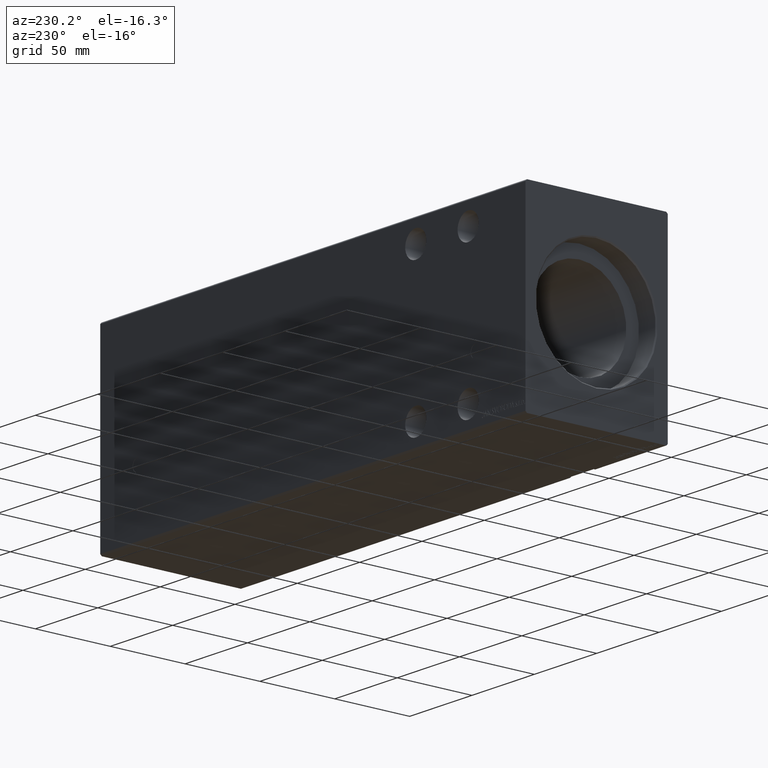
[diagram: clean part render]
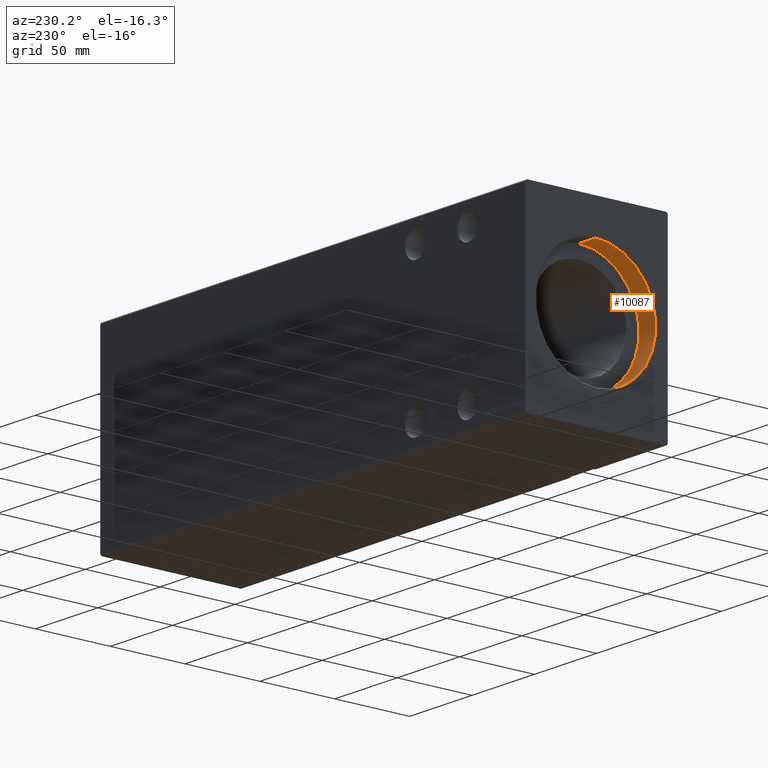
[diagram: same view with one face highlighted and labeled with its STEP entity id]
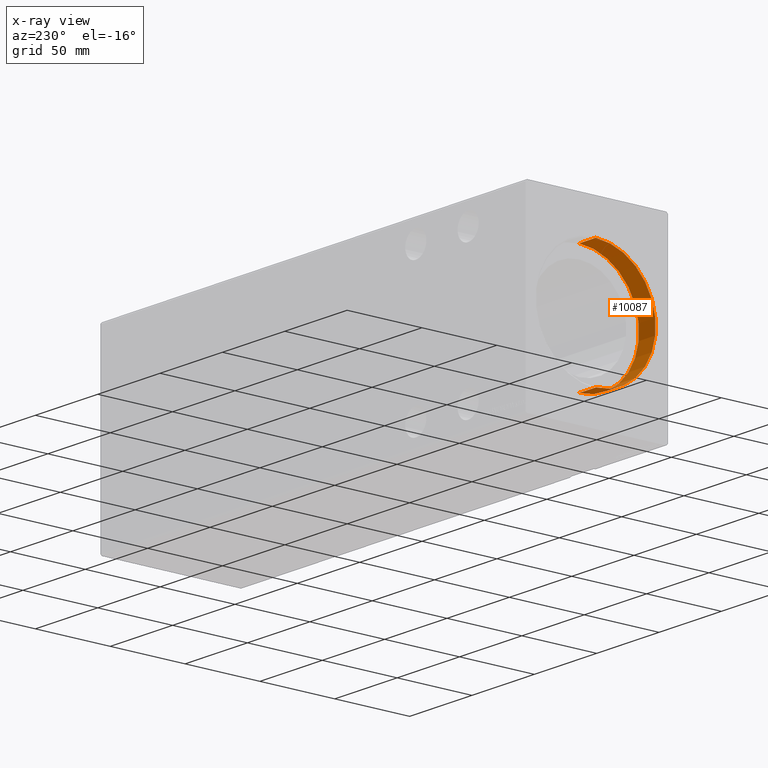
[diagram: x-ray of the same camera — body ghosted, the highlighted face saturated]
A machine part, auxiliary view. The second image highlights one B-rep face of the part: STEP entity #10087.
The next image is the same camera in x-ray: the body ghosted, the highlighted face saturated — about 0% of this face is hidden behind the body in this view.
In plain terms, the highlighted cylindrical surface (partial cylindrical patch) has radius 40 mm, axis along (-1, -0, -0).
Its self-contained STEP definition (entity closure, byte-faithful):
#1090 = CYLINDRICAL_SURFACE ( 'NONE', #41748, 40.00000000000000000 ) ;
#1433 = DIRECTION ( 'NONE',  ( 0.000000000000000000, 0.000000000000000000, -1.000000000000000000 ) ) ;
#2559 = EDGE_CURVE ( 'NONE', #39337, #17074, #40617, .T. ) ;
#5462 = AXIS2_PLACEMENT_3D ( 'NONE', #30329, #39685, #1433 ) ;
#7151 = CARTESIAN_POINT ( 'NONE',  ( 0.6999999999999297895, 4.898587196589413026E-15, -40.00000000000000000 ) ) ;
#7262 = DIRECTION ( 'NONE',  ( -1.000000000000000000, -0.000000000000000000, -0.000000000000000000 ) ) ;
#9255 = DIRECTION ( 'NONE',  ( -1.000000000000000000, 0.000000000000000000, 0.000000000000000000 ) ) ;
#9878 = CARTESIAN_POINT ( 'NONE',  ( 14.00000000000000000, 4.898587196589413026E-15, -40.00000000000000000 ) ) ;
#10087 = ADVANCED_FACE ( 'NONE', ( #38978 ), #1090, .F. ) ;
#10202 = VERTEX_POINT ( 'NONE', #30627 ) ;
#12992 = ORIENTED_EDGE ( 'NONE', *, *, #39413, .F. ) ;
#16909 = ORIENTED_EDGE ( 'NONE', *, *, #41930, .T. ) ;
#17074 = VERTEX_POINT ( 'NONE', #7151 ) ;
#20804 = ORIENTED_EDGE ( 'NONE', *, *, #41439, .F. ) ;
#22281 = CIRCLE ( 'NONE', #39965, 40.00000000000000000 ) ;
#22795 = VERTEX_POINT ( 'NONE', #26464 ) ;
#22834 = DIRECTION ( 'NONE',  ( 0.000000000000000000, 0.000000000000000000, 1.000000000000000000 ) ) ;
#23174 = VECTOR ( 'NONE', #7262, 1000.000000000000000 ) ;
#24076 = VECTOR ( 'NONE', #35087, 1000.000000000000000 ) ;
#26464 = CARTESIAN_POINT ( 'NONE',  ( 14.00000000000000000, 0.000000000000000000, 40.00000000000000000 ) ) ;
#29206 = DIRECTION ( 'NONE',  ( 0.000000000000000000, 0.000000000000000000, 1.000000000000000000 ) ) ;
#29996 = CARTESIAN_POINT ( 'NONE',  ( 14.00000000000000000, 0.000000000000000000, 0.000000000000000000 ) ) ;
#30329 = CARTESIAN_POINT ( 'NONE',  ( 0.6999999999999297895, 0.000000000000000000, 0.000000000000000000 ) ) ;
#30627 = CARTESIAN_POINT ( 'NONE',  ( 0.6999999999999297895, 0.000000000000000000, 40.00000000000000000 ) ) ;
#32189 = DIRECTION ( 'NONE',  ( -1.000000000000000000, -0.000000000000000000, -0.000000000000000000 ) ) ;
#32435 = ORIENTED_EDGE ( 'NONE', *, *, #2559, .T. ) ;
#32630 = CARTESIAN_POINT ( 'NONE',  ( 14.00000000000000000, 0.000000000000000000, 0.000000000000000000 ) ) ;
#35087 = DIRECTION ( 'NONE',  ( -1.000000000000000000, -0.000000000000000000, -0.000000000000000000 ) ) ;
#38520 = EDGE_LOOP ( 'NONE', ( #12992, #32435, #16909, #20804 ) ) ;
#38978 = FACE_OUTER_BOUND ( 'NONE', #38520, .T. ) ;
#39337 = VERTEX_POINT ( 'NONE', #9878 ) ;
#39413 = EDGE_CURVE ( 'NONE', #39337, #22795, #22281, .T. ) ;
#39685 = DIRECTION ( 'NONE',  ( -1.000000000000000000, 0.000000000000000000, 0.000000000000000000 ) ) ;
#39965 = AXIS2_PLACEMENT_3D ( 'NONE', #32630, #9255, #22834 ) ;
#40093 = CIRCLE ( 'NONE', #5462, 40.00000000000000000 ) ;
#40413 = CARTESIAN_POINT ( 'NONE',  ( 14.00000000000000000, 4.898587196589413026E-15, -40.00000000000000000 ) ) ;
#40617 = LINE ( 'NONE', #40413, #23174 ) ;
#41044 = CARTESIAN_POINT ( 'NONE',  ( 14.00000000000000000, 0.000000000000000000, 40.00000000000000000 ) ) ;
#41439 = EDGE_CURVE ( 'NONE', #22795, #10202, #41680, .T. ) ;
#41680 = LINE ( 'NONE', #41044, #24076 ) ;
#41748 = AXIS2_PLACEMENT_3D ( 'NONE', #29996, #32189, #29206 ) ;
#41930 = EDGE_CURVE ( 'NONE', #17074, #10202, #40093, .T. ) ;